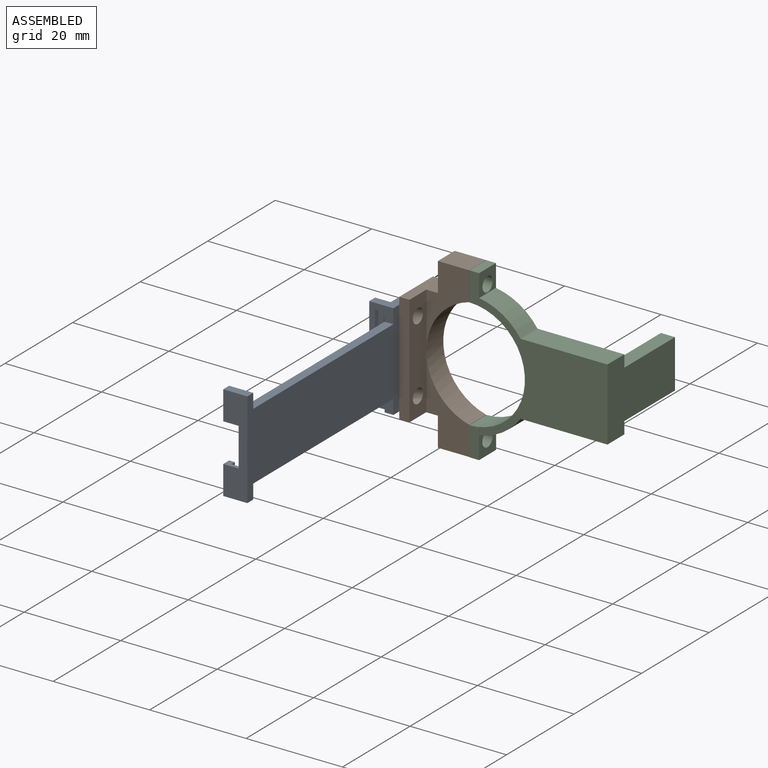
[diagram: assembled view]
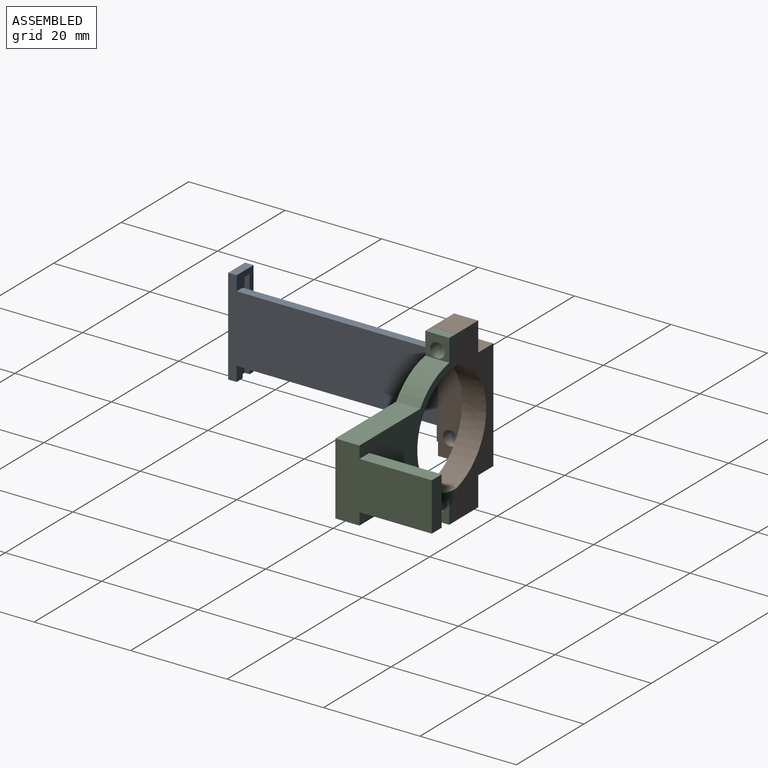
[diagram: assembled view, second angle]
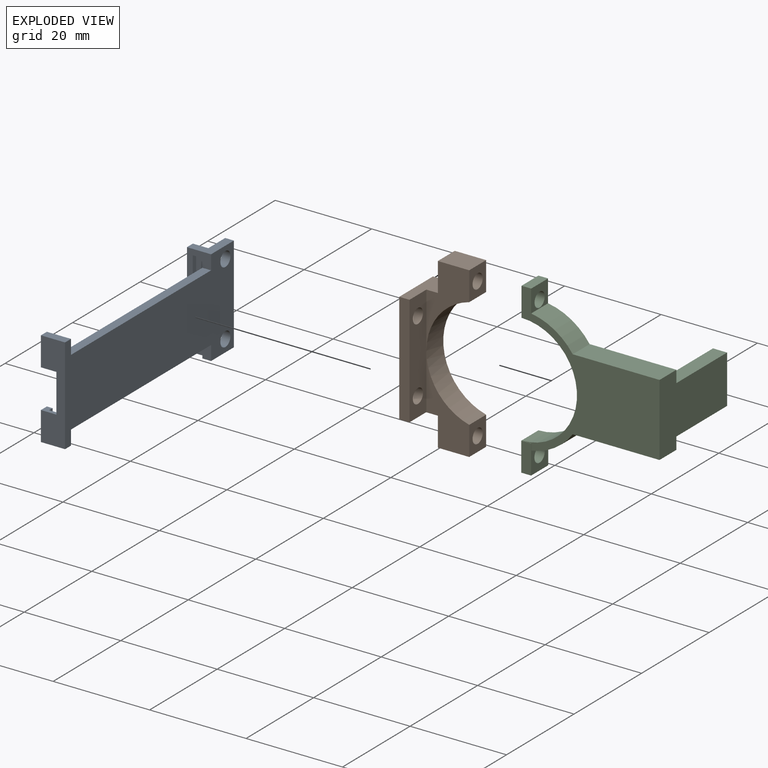
[diagram: exploded view]
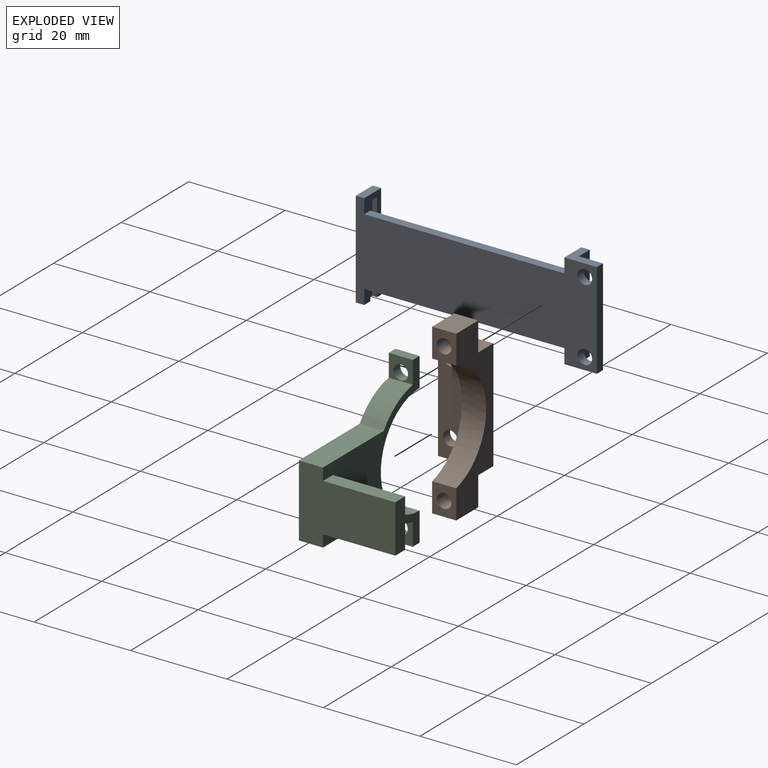
[diagram: exploded view, second angle]
ASSEMBLY  parts=3 mates=2
PART A: 40 faces, bbox 20x5x50 mm
  f0: plane 6x3.2mm, normal (0,0,-1), area 19.2mm2, adj f1,f10,f31,f32
  f1: plane 6.75x5mm, normal (1,0,0), area 15.7mm2, adj f0,f9,f10,f20,f21,f22,f23,f32
  f2: plane 6x1.75mm, normal (0,-1,0), area 10.5mm2, adj f18,f19,f26,f28
  f3: plane 6.75x5mm, normal (-1,0,0), area 17.7mm2, adj f5,f6,f20,f25,f32,f37
  f4: plane 2x1mm, normal (1,0,0), area 2mm2, adj f17,f23,f24,f26
  f5: plane 6x1.75mm, normal (0,-1,0), area 10.5mm2, adj f3,f6,f25,f30
  f6: plane 6x3.2mm, normal (0,0,-1), area 19.2mm2, adj f3,f5,f30,f32
  f7: plane 4.8x1mm, normal (0,1,0), area 4.8mm2, adj f8,f11,f25,f30
  f8: plane 4.8x2mm, normal (0,0,1), area 9.6mm2, adj f7,f11,f23,f30
  f9: plane 6x1.2mm, normal (0,0,1), area 7.2mm2, adj f1,f10,f21,f31
  f10: plane 6x1.75mm, normal (0,-1,0), area 10.5mm2, adj f0,f1,f9,f31
  f11: plane 2x1mm, normal (1,0,0), area 2mm2, adj f7,f8,f23,f25
  f12: plane 6x1mm, normal (0,1,0), area 6mm2, adj f14,f15,f16,f29
  f13: plane 6x1.75mm, normal (0,-1,0), area 10.5mm2, adj f15,f16,f18,f29
  f14: plane 6x2mm, normal (0,0,-1), area 12mm2, adj f12,f16,f23,f29
  f15: plane 6x1.2mm, normal (0,0,-1), area 7.2mm2, adj f12,f13,f16,f29
  f16: plane 5x1.75mm, normal (1,0,0), area 6.8mm2, adj f12,f13,f14,f15,f18,f20,f23,f36
  f17: plane 4.8x1mm, normal (0,1,0), area 4.8mm2, adj f4,f24,f26,f28
  f18: plane 20x5mm, normal (0,0,1), area 74.4mm2, adj f2,f13,f16,f19,f20,f27,f28,f29
  f19: plane 5x1.75mm, normal (-1,0,0), area 8.8mm2, adj f2,f18,f20,f26
  f20: plane 50x20mm, normal (0,1,0), area 736.9mm2, adj f1,f3,f16,f18,f19,f25,f26,f33
  f21: plane 6x1mm, normal (0,1,0), area 6mm2, adj f1,f9,f22,f31
  f22: plane 6x2mm, normal (0,0,1), area 12mm2, adj f1,f21,f23,f31
  f23: plane 43.51x18.81mm, normal (0,-1,0), area 618.6mm2, adj f1,f4,f8,f11,f14,f16,f22,f24
  f24: plane 4.8x2mm, normal (0,0,-1), area 9.6mm2, adj f4,f17,f23,f28
  f25: plane 6x5mm, normal (0,0,1), area 15mm2, adj f3,f5,f7,f11,f20,f23,f30,f33
  f26: plane 6x5mm, normal (0,0,-1), area 15mm2, adj f2,f4,f17,f19,f20,f23,f28,f33
  f27: plane 8.01x0.76mm, normal (0,-1,0), area 6mm2, adj f18,f23,f28,f29
  f28: plane 3.2x1.75mm, normal (1,0,0), area 3.6mm2, adj f2,f17,f18,f24,f26,f27
  f29: plane 3.2x1.75mm, normal (-1,0,0), area 3.6mm2, adj f12,f13,f14,f15,f18,f27
  f30: plane 3.2x1.75mm, normal (1,0,0), area 3.6mm2, adj f5,f6,f7,f8,f25,f32
  f31: plane 3.2x1.75mm, normal (-1,0,0), area 3.6mm2, adj f0,f9,f10,f21,f22,f32
  f32: plane 20.01x5.76mm, normal (0,-1,0), area 91.9mm2, adj f0,f1,f3,f6,f23,f30,f31,f37
  f33: plane 41.5x1.8mm, normal (-1,0,0), area 74.9mm2, adj f20,f23,f25,f26
  f34: plane 41.5x1.8mm, normal (1,0,0), area 74.9mm2, adj f20,f23,f35,f36
  f35: plane 3x1.8mm, normal (0,0,1), area 5.4mm2, adj f1,f20,f23,f34
  f36: plane 3x1.8mm, normal (0,0,-1), area 5.4mm2, adj f16,f20,f23,f34
  f37: plane 20x1.8mm, normal (0,0,-1), area 36mm2, adj f1,f3,f20,f32
  f38: cylinder r=1.5mm len=3mm, axis (0,-1,0), area 17mm2, adj f20,f32
  f39: cylinder r=1.5mm len=3mm, axis (0,-1,0), area 17mm2, adj f20,f32
PART B: 20 faces, bbox 11x10x35 mm
  f0: plane 17.48x8.89mm, normal (0,-1,0), area 65.3mm2, adj f2,f3,f9,f10,f11,f15
  f1: plane 17.51x11mm, normal (0,-1,0), area 65.7mm2, adj f4,f5,f6,f7,f8,f9,f15,f16
  f2: plane 6x5mm, normal (-1,0,0), area 22.9mm2, adj f0,f3,f11,f12,f14
  f3: plane 10x4.5mm, normal (0,0,1), area 33.1mm2, adj f0,f2,f4,f12,f15,f17
  f4: plane 22.99x10mm, normal (-1,0,0), area 215.6mm2, adj f1,f3,f5,f12,f16,f17,f18,f19
  f5: plane 5x4.5mm, normal (0,0,-1), area 22.5mm2, adj f1,f4,f6,f12
  f6: plane 6x5mm, normal (-1,0,0), area 22.9mm2, adj f1,f5,f7,f12,f13
  f7: plane 6.5x5mm, normal (0,0,-1), area 32.5mm2, adj f1,f6,f8,f12
  f8: plane 6.01x5mm, normal (1,0,0), area 23mm2, adj f1,f7,f9,f12,f13
  f9: cylinder r=11.88mm len=23mm, axis (0,1,0), area 156.4mm2, adj f0,f1,f8,f10,f12
  f10: plane 5.98x5mm, normal (1,0,0), area 22.8mm2, adj f0,f9,f11,f12,f14
  f11: plane 6.5x5mm, normal (0,0,1), area 32.5mm2, adj f0,f2,f10,f12
  f12: plane 34.99x11mm, normal (0,1,0), area 179.6mm2, adj f2,f3,f4,f5,f6,f7,f8,f9
  f13: cylinder r=1.5mm len=6.5mm, axis (1,0,0), area 61.3mm2, adj f6,f8
  f14: cylinder r=1.5mm len=6.5mm, axis (1,0,0), area 61.3mm2, adj f2,f10
  f15: plane 22.96x5mm, normal (1,0,0), area 100.7mm2, adj f0,f1,f3,f16,f17,f18,f19
  f16: plane 5x2.12mm, normal (0,0,-1), area 10.6mm2, adj f1,f4,f15,f17
  f17: plane 22.96x2.12mm, normal (0,-1,0), area 48.6mm2, adj f3,f4,f15,f16
  f18: cylinder r=1.5mm len=3mm, axis (-1,0,0), area 19.9mm2, adj f4,f15
  f19: cylinder r=1.5mm len=3mm, axis (-1,0,0), area 19.9mm2, adj f4,f15
PART C: 22 faces, bbox 28.6x20.1x35 mm
  f0: cylinder r=13mm len=8.62mm, axis (0,1,0), area 52.1mm2, adj f2,f3,f5,f19
  f1: cylinder r=13mm len=8.58mm, axis (0,1,0), area 51.9mm2, adj f2,f3,f6,f10
  f2: plane 30.34x28.62mm, normal (0,-1,0), area 309.6mm2, adj f0,f1,f4,f5,f6,f7,f8,f10
  f3: plane 35x28.62mm, normal (0,1,0), area 292.6mm2, adj f0,f1,f4,f5,f6,f7,f8,f9
  f4: cylinder r=11.5mm len=23mm, axis (0,-1,0), area 180.6mm2, adj f2,f3,f8,f9
  f5: plane 18x5mm, normal (0,0,1), area 90mm2, adj f0,f2,f3,f7
  f6: plane 18x5mm, normal (0,0,-1), area 90mm2, adj f1,f2,f3,f7
  f7: plane 20x15mm, normal (1,0,0), area 225mm2, adj f2,f3,f5,f6,f15,f17,f18
  f8: plane 6x5mm, normal (-1,0,0), area 22.9mm2, adj f2,f3,f4,f20,f21
  f9: plane 6x5.07mm, normal (-1,0,0), area 23mm2, adj f3,f4,f11,f12,f13,f14
  f10: plane 6x5.07mm, normal (1,0,0), area 16.3mm2, adj f1,f2,f3,f11,f12,f13,f14
  f11: plane 6x2.04mm, normal (0,-1,0), area 12.2mm2, adj f9,f10,f12,f13
  f12: plane 5.07x2.04mm, normal (0,0,-1), area 10.3mm2, adj f3,f9,f10,f11
  f13: plane 2.04x0.07mm, normal (0,0,1), area 0.1mm2, adj f2,f9,f10,f11
  f14: cylinder r=1.54mm len=3.07mm, axis (-1,0,0), area 19.7mm2, adj f9,f10
  f15: plane 15x2.92mm, normal (0,0,-1), area 43.8mm2, adj f3,f7,f16,f18
  f16: plane 15x10mm, normal (-1,0,0), area 150mm2, adj f3,f15,f17,f18
  f17: plane 15x2.92mm, normal (0,0,1), area 43.8mm2, adj f3,f7,f16,f18
  f18: plane 10x2.92mm, normal (0,1,0), area 29.2mm2, adj f7,f15,f16,f17
  f19: plane 5x4.65mm, normal (1,0,0), area 16.2mm2, adj f0,f2,f3,f20,f21
  f20: plane 5x2mm, normal (0,0,1), area 10mm2, adj f2,f3,f8,f19
  f21: cylinder r=1.5mm len=3mm, axis (-1,0,0), area 18.8mm2, adj f8,f19
PLACE A rot(axis=(0.58,0.58,-0.58),120deg) t=(-83.16,4.51,13.95)mm
PLACE B t=(-72.16,37.01,13.96)mm
PLACE C t=(-72.11,37.01,13.93)mm
MATE slider B.f14 <-> C.f21  axis (-1,0,0) through (-78.66,34.51,28.43)mm
MATE slider A.f38 <-> B.f18  axis (-1,0,0) through (-84.96,29.51,6.45)mm
